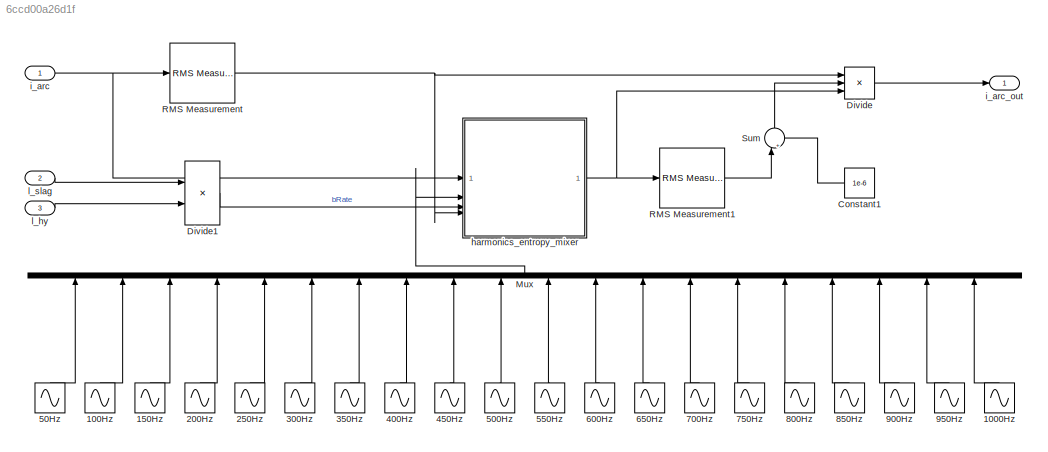
MODEL slx_6ccd00a26d1f
KIND model
CONFIG AbsTol = auto
CONFIG EnableMultiTasking = off
CONFIG FixedStep = 1e-5
CONFIG MaxStep = auto
CONFIG MinStep = auto
CONFIG RelTol = 1e-3
CONFIG SampleTimeConstraint = Unconstrained
CONFIG SolverName = ode14x
CONFIG StartTime = 0.0
CONFIG StopTime = 0.2
BLOCK [Sin] 1000Hz
  Frequency = 2 * pi * f * 20
  Phase = [0 -0.6225 -0.6225]
  SampleTime = Ts_local
BLOCK [Sin] 100Hz
  Frequency = 2 * pi * f * 2
  Phase = [0 -0.4679 -0.4679]
  SampleTime = Ts_local
BLOCK [Sin] 150Hz
  Frequency = 2 * pi * f * 3
  Phase = [0 -0.8069 -0.8069]
  SampleTime = Ts_local
BLOCK [Sin] 200Hz
  Frequency = 2 * pi * f * 4
  Phase = [0 0.0685 0.0685]
  SampleTime = Ts_local
BLOCK [Sin] 250Hz
  Frequency = 2 * pi * f * 5
  Phase = [0 -1.3175 -1.3175]
  SampleTime = Ts_local
BLOCK [Sin] 300Hz
  Frequency = 2 * pi * f * 6
  Phase = [0 -0.0827 -0.0827]
  SampleTime = Ts_local
BLOCK [Sin] 350Hz
  Frequency = 2 * pi * f * 7
  Phase = [0 -1.1120 -1.1120]
  SampleTime = Ts_local
BLOCK [Sin] 400Hz
  Frequency = 2 * pi * f * 8
  Phase = [0 -0.4285 -0.4285]
  SampleTime = Ts_local
BLOCK [Sin] 450Hz
  Frequency = 2 * pi * f * 9
  Phase = [0 -1.5794 -1.5794]
  SampleTime = Ts_local
BLOCK [Sin] 500Hz
  Frequency = 2 * pi * f * 10
  Phase = [0 -0.2913 -0.2913]
  SampleTime = Ts_local
BLOCK [Sin] 50Hz
  Frequency = 2 * pi * f * 1
  Phase = [0 -2.2678 -2.2678]
  SampleTime = Ts_local
BLOCK [Sin] 550Hz
  Frequency = 2 * pi * f * 11
  Phase = [0 -1.9727 -1.9727]
  SampleTime = Ts_local
BLOCK [Sin] 600Hz
  Frequency = 2 * pi * f * 12
  Phase = [0 -0.4659 -0.4659]
  SampleTime = Ts_local
BLOCK [Sin] 650Hz
  Frequency = 2 * pi * f * 13
  Phase = [0 -2.1009 -2.1009]
  SampleTime = Ts_local
BLOCK [Sin] 700Hz
  Frequency = 2 * pi * f * 14
  Phase = [0 -0.5103 -0.5103]
  SampleTime = Ts_local
BLOCK [Sin] 750Hz
  Frequency = 2 * pi * f * 15
  Phase = [0 -2.4781 -2.4781]
  SampleTime = Ts_local
BLOCK [Sin] 800Hz
  Frequency = 2 * pi * f * 16
  Phase = [0 -0.5504 -0.5504]
  SampleTime = Ts_local
BLOCK [Sin] 850Hz
  Frequency = 2 * pi * f * 17
  Phase = [0 -2.8439 -2.8439]
  SampleTime = Ts_local
BLOCK [Sin] 900Hz
  Frequency = 2 * pi * f * 18
  Phase = [0 -0.6115 -0.6115]
  SampleTime = Ts_local
BLOCK [Sin] 950Hz
  Frequency = 2 * pi * f * 19
  Phase = [0 3.1081 3.1081]
  SampleTime = Ts_local
BLOCK [Constant] Constant1
  NameLocation = top
  SampleTime = Ts_local
  Value = 1e-6
BLOCK [Product] Divide
  Inputs = */*
BLOCK [Product] Divide1
  Inputs = */
BLOCK [Mux] Mux
  DisplayOption = bar
  Inputs = 20
  NameLocation = right
BLOCK [Reference] RMS Measurement  REF=eeRmsMeasurement/RMS
Measurement
  LibrarySourceBlock = ee_sl_lib/Measurements/RMS\nMeasurement
  SourceBlock = eeRmsMeasurement/RMS\nMeasurement
  SourceType = RMS Measurement
BLOCK [Reference] RMS Measurement1  REF=eeRmsMeasurement/RMS
Measurement
  LibrarySourceBlock = ee_sl_lib/Measurements/RMS\nMeasurement
  SourceBlock = eeRmsMeasurement/RMS\nMeasurement
  SourceType = RMS Measurement
BLOCK [Sum] Sum
  Inputs = |++
  NameLocation = right
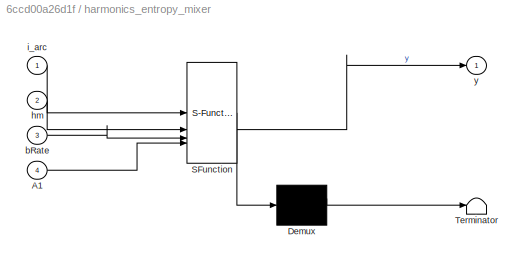
BLOCK [SubSystem] harmonics_entropy_mixer
  ErrorFcn = Stateflow.Translate.translate
  PermitHierarchicalResolution = ExplicitOnly
  SFBlockType = MATLAB Function
  SystemSampleTime = Ts_local
  TreatAsAtomicUnit = on
BLOCK [Demux] harmonics_entropy_mixer/ Demux 
  Outputs = 1
BLOCK [S-Function] harmonics_entropy_mixer/ SFunction 
  EnableBusSupport = off
  FunctionName = sf_sfun
  PortCounts = [4 2]
  SFcnIsStateOwnerBlock = off
  SFunctionDeploymentMode = off
  Tag = Stateflow S-Function 2
BLOCK [Terminator] harmonics_entropy_mixer/ Terminator 
BLOCK [Inport] harmonics_entropy_mixer/A1
  Port = 4
BLOCK [Inport] harmonics_entropy_mixer/bRate
  Port = 3
BLOCK [Inport] harmonics_entropy_mixer/hm
  Port = 2
BLOCK [Inport] harmonics_entropy_mixer/i_arc
BLOCK [Outport] harmonics_entropy_mixer/y
BLOCK [Inport] i_arc
  NameLocation = left
BLOCK [Outport] i_arc_out
  NameLocation = right
BLOCK [Inport] l_hy
  NameLocation = left
  Port = 3
  PortDimensions = [3 1]
BLOCK [Inport] l_slag
  NameLocation = left
  Port = 2
  PortDimensions = [3 1]
LINE 1000Hz:1 -> Mux:20
LINE 100Hz:1 -> Mux:2
LINE 150Hz:1 -> Mux:3
LINE 200Hz:1 -> Mux:4
LINE 250Hz:1 -> Mux:5
LINE 300Hz:1 -> Mux:6
LINE 350Hz:1 -> Mux:7
LINE 400Hz:1 -> Mux:8
LINE 450Hz:1 -> Mux:9
LINE 500Hz:1 -> Mux:10
LINE 50Hz:1 -> Mux:1
LINE 550Hz:1 -> Mux:11
LINE 600Hz:1 -> Mux:12
LINE 650Hz:1 -> Mux:13
LINE 700Hz:1 -> Mux:14
LINE 750Hz:1 -> Mux:15
LINE 800Hz:1 -> Mux:16
LINE 850Hz:1 -> Mux:17
LINE 900Hz:1 -> Mux:18
LINE 950Hz:1 -> Mux:19
LINE Constant1:1 -> Sum:2
LINE Divide1:1 -> harmonics_entropy_mixer:3
LINE Divide:1 -> i_arc_out:1
LINE Mux:1 -> harmonics_entropy_mixer:2
LINE RMS Measurement1:1 -> Sum:1
NET RMS Measurement:1 -> Divide:1, harmonics_entropy_mixer:4
LINE Sum:1 -> Divide:2
NET harmonics_entropy_mixer:1 -> Divide:3, RMS Measurement1:1
NET i_arc:1 -> RMS Measurement:1, harmonics_entropy_mixer:1
LINE l_hy:1 -> Divide1:2
LINE l_slag:1 -> Divide1:1
note: NET lines group one-source signal fan-out (src -> all destinations, sorted); 1:1 wires keep LINE
CHART harmonics_entropy_mixer states=1 transitions=1
  STATE_LABEL 'eML_blk_kernel()'
  STATE_LABEL 'SCRIPT:\nfunction y = harmonics_entropy_mixer(i_arc, hm, bRate, A1)\n% i_arc : 3x1 instantaneous raw arc current\n% hm    : 3Nhx1 harmonic basis values at current instant\n%         e.g. [sin(2*pi*50*t); sin(2*pi*100*t); ...]\n% bRate : 3x1 buried arc rate/state, assumed in [0,1]\n% A1    : 3x1 RMS of raw arc current\n%\n% y     : 3x1 current after harmonic + entropy shaping\n\n    persistent eta\n\n    if is...<+2322ch>'
CHART  states=0 transitions=0
